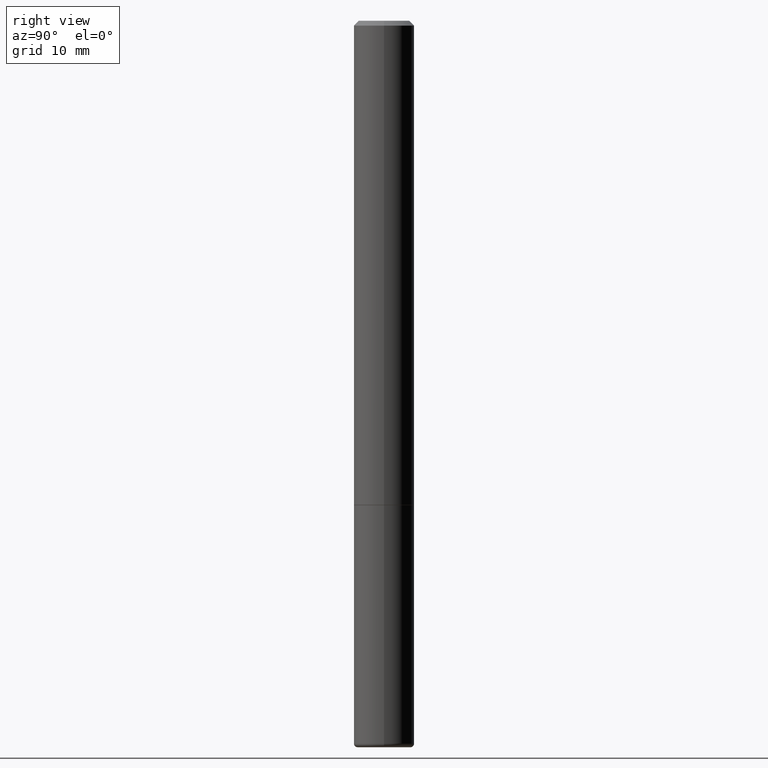
[diagram: clean part render]
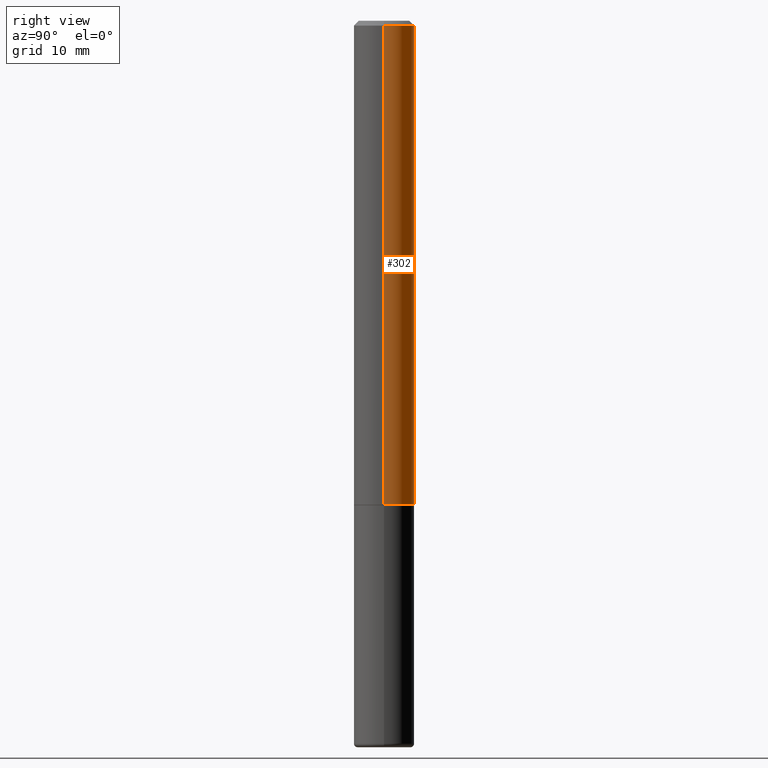
[diagram: same view with one face highlighted and labeled with its STEP entity id]
A machine part, right view. The second image highlights one B-rep face of the part: STEP entity #302.
In plain terms, the highlighted cylindrical surface (edge-blend (fillet) strip) has radius 3.175 mm, axis along (-0, 0, 1).
Its self-contained STEP definition (entity closure, byte-faithful):
#27 = EDGE_CURVE ( 'NONE', #206, #42, #359, .T. ) ;
#42 = VERTEX_POINT ( 'NONE', #278 ) ;
#44 = DIRECTION ( 'NONE',  ( -2.445468806185136877E-29, 3.491481338843145188E-15, 1.000000000000000000 ) ) ;
#80 = LINE ( 'NONE', #383, #452 ) ;
#87 = AXIS2_PLACEMENT_3D ( 'NONE', #103, #404, #439 ) ;
#103 = CARTESIAN_POINT ( 'NONE',  ( 0.000000000000000000, 0.000000000000000000, 0.000000000000000000 ) ) ;
#107 = AXIS2_PLACEMENT_3D ( 'NONE', #220, #363, #185 ) ;
#115 = LINE ( 'NONE', #279, #188 ) ;
#123 = DIRECTION ( 'NONE',  ( 1.000000000000000000, -6.982962677686269077E-15, 0.000000000000000000 ) ) ;
#127 = DIRECTION ( 'NONE',  ( -2.445468806185136597E-29, 3.491481338843145583E-15, 1.000000000000000000 ) ) ;
#143 = CARTESIAN_POINT ( 'NONE',  ( -0.1249999999999992090, 8.030407079339147158E-16, -0.02000000000000009409 ) ) ;
#148 = ORIENTED_EDGE ( 'NONE', *, *, #27, .T. ) ;
#157 = CARTESIAN_POINT ( 'NONE',  ( 0.1250000000000000278, -7.852341531058232286E-15, -1.999000000000000110 ) ) ;
#185 = DIRECTION ( 'NONE',  ( 1.000000000000000000, -6.982962677686267499E-15, 0.000000000000000000 ) ) ;
#187 = EDGE_CURVE ( 'NONE', #42, #300, #80, .T. ) ;
#188 = VECTOR ( 'NONE', #271, 39.37007874015748143 ) ;
#192 = ORIENTED_EDGE ( 'NONE', *, *, #294, .F. ) ;
#206 = VERTEX_POINT ( 'NONE', #157 ) ;
#220 = CARTESIAN_POINT ( 'NONE',  ( 4.890937612370296805E-31, -6.982962677686323656E-17, -0.02000000000000009409 ) ) ;
#243 = EDGE_LOOP ( 'NONE', ( #148, #337, #192, #261 ) ) ;
#258 = CYLINDRICAL_SURFACE ( 'NONE', #87, 0.1249999999999996253 ) ;
#261 = ORIENTED_EDGE ( 'NONE', *, *, #380, .F. ) ;
#271 = DIRECTION ( 'NONE',  ( -2.445468806185136877E-29, 3.491481338843145188E-15, 1.000000000000000000 ) ) ;
#278 = CARTESIAN_POINT ( 'NONE',  ( -0.1250000000000000278, -2.636471991862018663E-15, -1.999000000000000110 ) ) ;
#279 = CARTESIAN_POINT ( 'NONE',  ( 0.1249999999999996253, -8.728703347107806764E-16, 6.095220969744901524E-30 ) ) ;
#294 = EDGE_CURVE ( 'NONE', #371, #300, #476, .T. ) ;
#300 = VERTEX_POINT ( 'NONE', #143 ) ;
#302 = ADVANCED_FACE ( 'NONE', ( #483 ), #258, .T. ) ;
#337 = ORIENTED_EDGE ( 'NONE', *, *, #187, .T. ) ;
#350 = CARTESIAN_POINT ( 'NONE',  ( 4.888492143564088712E-29, -6.979471196347448158E-15, -1.999000000000000110 ) ) ;
#359 = CIRCLE ( 'NONE', #489, 0.1250000000000000278 ) ;
#363 = DIRECTION ( 'NONE',  ( -2.445468806185136597E-29, 3.491481338843145583E-15, 1.000000000000000000 ) ) ;
#371 = VERTEX_POINT ( 'NONE', #429 ) ;
#380 = EDGE_CURVE ( 'NONE', #206, #371, #115, .T. ) ;
#383 = CARTESIAN_POINT ( 'NONE',  ( -0.1249999999999996253, 8.881784197001225699E-16, -6.148668862818613310E-30 ) ) ;
#404 = DIRECTION ( 'NONE',  ( -2.445468806185136597E-29, 3.491481338843145583E-15, 1.000000000000000000 ) ) ;
#429 = CARTESIAN_POINT ( 'NONE',  ( 0.1249999999999992090, -9.273918764982992215E-16, -0.02000000000000009409 ) ) ;
#439 = DIRECTION ( 'NONE',  ( 1.000000000000000000, -6.982962677686266711E-15, 4.876176775795935793E-29 ) ) ;
#452 = VECTOR ( 'NONE', #44, 39.37007874015748143 ) ;
#476 = CIRCLE ( 'NONE', #107, 0.1249999999999992090 ) ;
#483 = FACE_OUTER_BOUND ( 'NONE', #243, .T. ) ;
#489 = AXIS2_PLACEMENT_3D ( 'NONE', #350, #127, #123 ) ;